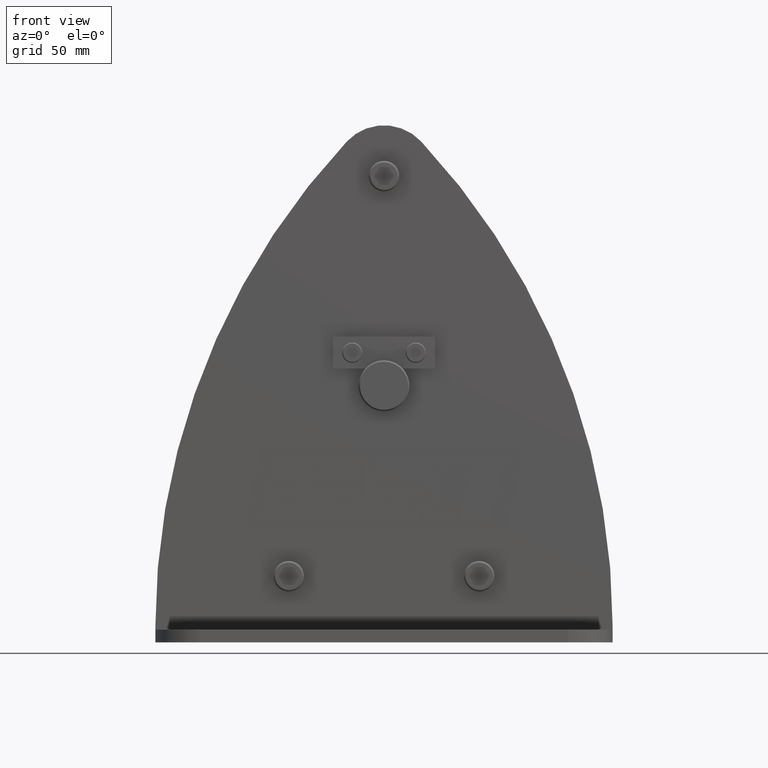
[diagram: clean part render]
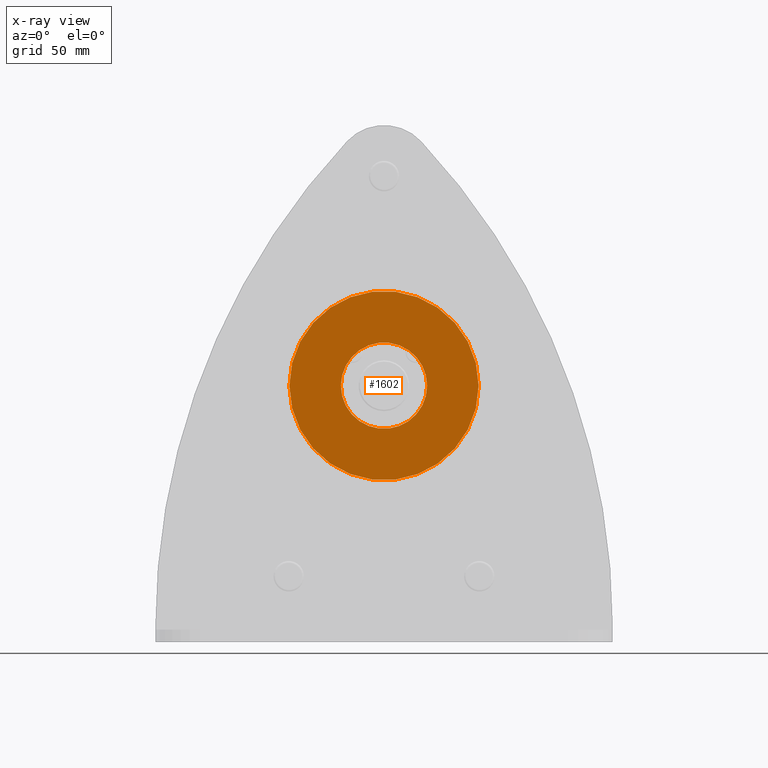
[diagram: x-ray — body ghosted, one internal face saturated and labeled with its STEP entity id]
A machine part, front view, then the same camera in x-ray: the body is ghosted and one INTERNAL B-rep face — a face not visible from any outside direction — is saturated and labeled: STEP entity #1602.
In plain terms, the highlighted planar face has unit normal (0, -1, 0).
Its self-contained STEP definition (entity closure, byte-faithful):
#1602=ADVANCED_FACE('',(#3450,#3451),#3452,.T.);
#3450=FACE_BOUND('',#5522,.T.);
#3451=FACE_OUTER_BOUND('',#5523,.T.);
#3452=PLANE('',#5524);
#5522=EDGE_LOOP('',(#10567,#10568));
#5523=EDGE_LOOP('',(#10569,#10570));
#5524=AXIS2_PLACEMENT_3D('',#10571,#10572,#10573);
#10567=ORIENTED_EDGE('',*,*,#14239,.T.);
#10568=ORIENTED_EDGE('',*,*,#12679,.T.);
#10569=ORIENTED_EDGE('',*,*,#12794,.T.);
#10570=ORIENTED_EDGE('',*,*,#14240,.T.);
#10571=CARTESIAN_POINT('',(37.25,-19.5,0.0));
#10572=DIRECTION('',(0.0,-1.0,0.0));
#10573=DIRECTION('',(1.0,0.0,0.0));
#12679=EDGE_CURVE('',#15378,#15375,#15379,.T.);
#12794=EDGE_CURVE('',#15560,#15562,#15564,.T.);
#14239=EDGE_CURVE('',#15375,#15378,#17701,.T.);
#14240=EDGE_CURVE('',#15562,#15560,#17702,.T.);
#15375=VERTEX_POINT('',#22108);
#15378=VERTEX_POINT('',#22112);
#15379=CIRCLE('',#22113,33.95);
#15560=VERTEX_POINT('',#23052);
#15562=VERTEX_POINT('',#23055);
#15564=CIRCLE('',#23058,74.5);
#17701=CIRCLE('',#25939,33.95);
#17702=CIRCLE('',#25940,74.5);
#22108=CARTESIAN_POINT('',(33.95,-19.5,0.0));
#22112=CARTESIAN_POINT('',(-33.95,-19.5,4.15767588310526E-015));
#22113=AXIS2_PLACEMENT_3D('',#28620,#28621,#28622);
#23052=CARTESIAN_POINT('',(74.5,-19.5,0.0));
#23055=CARTESIAN_POINT('',(-74.5,-19.5,9.12361865364778E-015));
#23058=AXIS2_PLACEMENT_3D('',#28786,#28787,#28788);
#25939=AXIS2_PLACEMENT_3D('',#30469,#30470,#30471);
#25940=AXIS2_PLACEMENT_3D('',#30472,#30473,#30474);
#28620=CARTESIAN_POINT('',(0.0,-19.5,0.0));
#28621=DIRECTION('',(-0.0,1.0,0.0));
#28622=DIRECTION('',(1.0,0.0,0.0));
#28786=CARTESIAN_POINT('',(0.0,-19.5,0.0));
#28787=DIRECTION('',(0.0,-1.0,0.0));
#28788=DIRECTION('',(1.0,0.0,0.0));
#30469=CARTESIAN_POINT('',(0.0,-19.5,0.0));
#30470=DIRECTION('',(-0.0,1.0,0.0));
#30471=DIRECTION('',(1.0,0.0,0.0));
#30472=CARTESIAN_POINT('',(0.0,-19.5,0.0));
#30473=DIRECTION('',(0.0,-1.0,0.0));
#30474=DIRECTION('',(1.0,0.0,0.0));